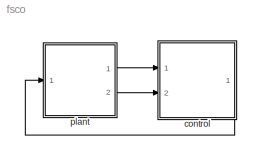
MODEL fsco
KIND model
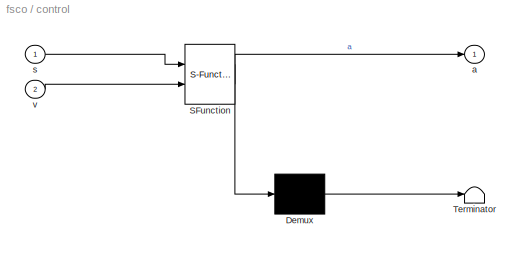
BLOCK [SubSystem] control
  ErrorFcn = Stateflow.Translate.translate
  PermitHierarchicalResolution = ExplicitOnly
  Ports = [2, 1]
  RequestExecContextInheritance = off
  SFBlockType = Chart
  SID = 1
  TreatAsAtomicUnit = on
BLOCK [Demux] control/ Demux 
  Outputs = 1
  Ports = [1, 1]
  SID = 1::48
BLOCK [S-Function] control/ SFunction 
  EnableBusSupport = on
  FunctionName = sf_sfun
  PortCounts = [2 2]
  Ports = [2, 2]
  SFcnIsStateOwnerBlock = off
  SFunctionDeploymentMode = off
  SID = 1::47
  Tag = Stateflow S-Function fsco 1
BLOCK [Terminator] control/ Terminator 
  SID = 1::49
BLOCK [Outport] control/a
  IconDisplay = Port number
  SID = 1::46
BLOCK [Inport] control/s
  IconDisplay = Port number
  SID = 1::44
BLOCK [Inport] control/v
  IconDisplay = Port number
  Port = 2
  SID = 1::45
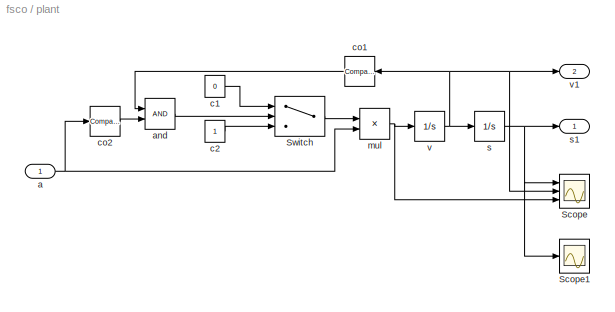
BLOCK [SubSystem] plant
  Ports = [1, 2]
  RequestExecContextInheritance = off
  SID = 2
BLOCK [Scope] plant/Scope
  Floating = off
  NumInputPorts = 3
  Ports = [3]
  SID = 4
  ScopeSpecificationString = Simulink.scopes.TimeScopeBlockCfg('CurrentConfiguration', extmgr.ConfigurationSet(extmgr.Configuration('Core','General UI',true),extmgr.Configuration('Core','Source UI',true),extmgr.Configuration('Sources','WiredSimulink',true,'DataLoggingSaveFormat','StructureWithTime','DataLoggingMaxPoints','10000','DataLoggingLimitDataPoints',true,'DataLoggingDecimation','1','DataLoggingDecimateData',true),extm...<+3037ch>
BLOCK [Scope] plant/Scope1
  Floating = off
  NumInputPorts = 1
  Ports = [1]
  SID = 16
  ScopeSpecificationString = Simulink.scopes.TimeScopeBlockCfg('CurrentConfiguration', extmgr.ConfigurationSet(extmgr.Configuration('Core','General UI',true),extmgr.Configuration('Core','Source UI',true),extmgr.Configuration('Sources','WiredSimulink',true,'DataLoggingVariableName','ScopeData1','DataLoggingSaveFormat','StructureWithTime','DataLoggingMaxPoints','10000','DataLoggingLimitDataPoints',true,'DataLoggingDecimation','...<+1689ch>
BLOCK [Switch] plant/Switch
  Criteria = u2 ~= 0
  InputSameDT = off
  SID = 5
  SaturateOnIntegerOverflow = off
BLOCK [Inport] plant/a
  IconDisplay = Port number
  SID = 3
BLOCK [Logic] plant/and
  AllPortsSameDT = off
  OutDataTypeStr = boolean
  Ports = [2, 1]
  SID = 6
BLOCK [Constant] plant/c1
  SID = 7
  Value = 0
BLOCK [Constant] plant/c2
  SID = 8
BLOCK [Reference] plant/co1  REF=simulink/Logic and Bit\nOperations/Compare\nTo Zero
  OutDataTypeStr = uint8
  Ports = [1, 1]
  SID = 9
  SourceBlock = simulink/Logic and Bit\nOperations/Compare\nTo Zero
  SourceProductBaseCode = SL
  SourceProductName = Simulink
  SourceType = Compare To Zero
  ZeroCross = on
  relop = <=
BLOCK [Reference] plant/co2  REF=simulink/Logic and Bit\nOperations/Compare\nTo Zero
  OutDataTypeStr = uint8
  Ports = [1, 1]
  SID = 10
  SourceBlock = simulink/Logic and Bit\nOperations/Compare\nTo Zero
  SourceProductBaseCode = SL
  SourceProductName = Simulink
  SourceType = Compare To Zero
  ZeroCross = on
  relop = <
BLOCK [Product] plant/mul
  InputSameDT = off
  OutDataTypeStr = Inherit: Inherit via internal rule
  Ports = [2, 1]
  SID = 11
  SaturateOnIntegerOverflow = off
BLOCK [Integrator] plant/s
  Ports = [1, 1]
  SID = 12
BLOCK [Outport] plant/s1
  IconDisplay = Port number
  SID = 14
BLOCK [Integrator] plant/v
  Ports = [1, 1]
  SID = 13
BLOCK [Outport] plant/v1
  IconDisplay = Port number
  Port = 2
  SID = 15
LINE control/ Demux :1 -> control/ Terminator :1
LINE control/ SFunction :1 -> control/ Demux :1
LINE control/ SFunction :2 -> control/a:1
LINE control/s:1 -> control/ SFunction :1
LINE control/v:1 -> control/ SFunction :2
LINE control:1 -> plant:1
LINE plant/Switch:1 -> plant/mul:1
NET plant/a:1 -> plant/co2:1, plant/mul:2
LINE plant/and:1 -> plant/Switch:2
LINE plant/c1:1 -> plant/Switch:1
LINE plant/c2:1 -> plant/Switch:3
LINE plant/co1:1 -> plant/and:1
LINE plant/co2:1 -> plant/and:2
NET plant/mul:1 -> plant/Scope:3, plant/v:1
NET plant/s:1 -> plant/Scope1:1, plant/Scope:1, plant/s1:1
NET plant/v:1 -> plant/Scope:2, plant/co1:1, plant/s:1, plant/v1:1
LINE plant:1 -> control:1
LINE plant:2 -> control:2
note: NET lines group one-source signal fan-out (src -> all destinations, sorted); 1:1 wires keep LINE
CHART control states=12 transitions=31
  STATE_LABEL 'l2'
  STATE_LABEL 'l2a'
  STATE_LABEL 'Driver'
  STATE_LABEL 'TCC'
  STATE_LABEL 'l3'
  STATE_LABEL 'RBC'
  STATE_LABEL 'Train'
  STATE_LABEL 'FMA2'
  STATE_LABEL 'FB22'
  STATE_LABEL 'FB2'
  STATE_LABEL 'FMA3'
  STATE_LABEL 'FB3'
